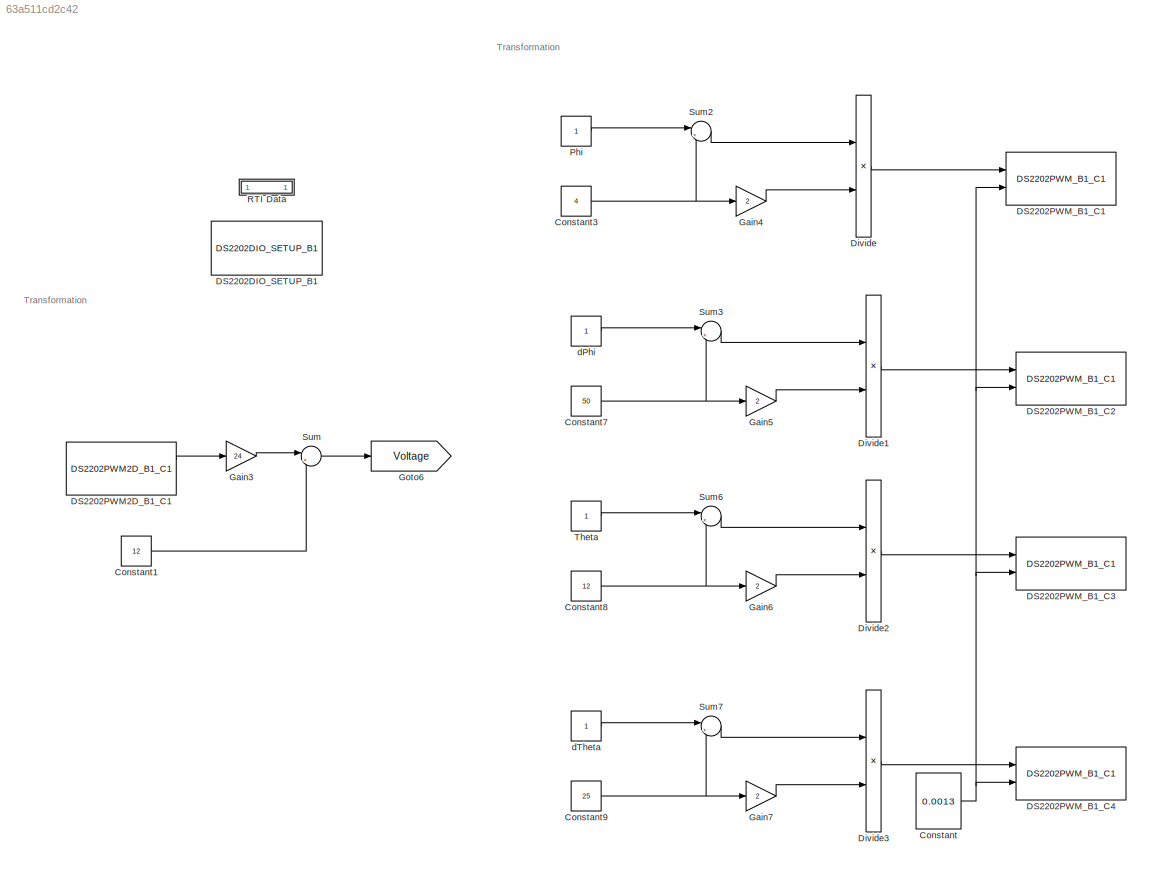
MODEL slx_63a511cd2c42
KIND model
CONFIG AbsTol = auto
CONFIG FixedStep = 0.0001
CONFIG MaxStep = auto
CONFIG MinStep = auto
CONFIG PostLoadFcn = , if any(exist('dsrtsu_mdlpostloadfcn', 'file') == [2, 3, 6]), try dsrtsu_mdlpostloadfcn('Execute', bdroot); catch fprintf('Error in PostLoadFcn (dsrtsu_mdlpostloadfcn) for model "%s":\n %s\n', bdroot, lasterr); end, end, \n
CONFIG RelTol = 1e-3
CONFIG SampleTimeConstraint = Unconstrained
CONFIG Solver = ode3
CONFIG SolverMode = SingleTasking
CONFIG SolverName = ode3
CONFIG StartTime = 0.0
CONFIG StopTime = Inf
BLOCK [Constant] Constant
  Value = 0.0013
BLOCK [Constant] Constant1
  Value = 12
BLOCK [Constant] Constant3
  Value = 4
BLOCK [Constant] Constant7
  Value = 50
BLOCK [Constant] Constant8
  Value = 12
BLOCK [Constant] Constant9
  Value = 25
BLOCK [Reference] DS2202DIO_SETUP_B1  REF=rti2202miolib/DS2202DIO_SETUP_B1
  DSProperties = struct('RTI',struct('Version',uint32(2),'BlockType',struct('isSLSource',uint8(0),'isSLSink',uint8(0),'isHWSource',uint8(0),'isHWSink',uint8(0),'isSetup',uint8(1),'isInline',uint8(1),'isNonInline',uint8(0),'isInterrupt',uint8(0),'isChannelwise',uint8(0)),'IOBoardType',{{'DS2202','MIO'}},'UnitType','SETUP','Identifier','SETUP','DialogType','ML','BlockSet','NONE','SlaveProcessor','NONE'))
  Ports = []
  RTIBlockInterface = struct('OutputPortsWidth',int32(0),'OutputPortsActive',0,'BlockDisplay',{{['Digital I/O\n SETUP'],'center'}},'IconTransparency','on','InitLevel',2,'DialogFcn','gui2202diosetup','BlockName',struct('Token',{{'DS2202DIO_SETUP_B'}},'BlockParam',{{'BoardNo'}}),'MaskDescription',['Configures the threshold level and the termination mode for all digital IO'])
  RTIBlockParaDefault = struct('BoardNo',1,'TermMode',0,'BitInThresholdLevelCh1',2.5,'BitInThresholdLevelCh2',2.5,'BitInThresholdLevelCh3',2.5,'BitInThresholdLevelCh4',2.5,'BitInThresholdLevelCh5',2.5,'BitInThresholdLevelCh6',2.5,'BitInThresholdLevelCh7',2.5,'BitInThresholdLevelCh8',2.5,'BitInThresholdLevelCh9',2.5,'BitInThresholdLevelCh10',2.5,'BitInThresholdLevelCh11',2.5,'BitInThresholdLevelCh12',2.5,'BitInThresholdLe...<+776ch>
  RTIBlockParameters = struct('BoardNo',{{1,'ON',[1 16]}},'TermMode',{{0,'OFF',[0 1]}},'BitInThresholdLevelCh1',{{'1.65','OFF',[1 23.8]}},'BitInThresholdLevelCh2',{{'1.65','OFF',[1 23.8]}},'BitInThresholdLevelCh3',{{'1.65','OFF',[1 23.8]}},'BitInThresholdLevelCh4',{{'1.65','OFF',[1 23.8]}},'BitInThresholdLevelCh5',{{'1.65','OFF',[1 23.8]}},'BitInThresholdLevelCh6',{{'1.65','OFF',[1 23.8]}},'BitInThresholdLevelCh7',{{'1....<+1493ch>
  RTISFcnParameters = struct('BoardNo','int32','TermMode','int32','BitInThresholdLevelCh1','double','BitInThresholdLevelCh2','double','BitInThresholdLevelCh3','double','BitInThresholdLevelCh4','double','BitInThresholdLevelCh5','double','BitInThresholdLevelCh6','double','BitInThresholdLevelCh7','double','BitInThresholdLevelCh8','double','BitInThresholdLevelCh9','double','BitInThresholdLevelCh10','double','BitInThreshold...<+754ch>
  Reserved1 = []
  Reserved2 = []
  Reserved3 = []
  Reserved4 = []
  SourceBlock = rti2202miolib/DS2202DIO_SETUP_B1
  SourceType = RTI
BLOCK [Reference] DS2202PWM2D_B1_C1  REF=rti2202miolib/DS2202PWM2D_B1_C1
  DSProperties = struct('RTI',struct('Version',uint32(1),'BlockType',struct('isSLSource',uint8(1),'isSLSink',uint8(0),'isHWSource',uint8(1),'isHWSink',uint8(0),'isSetup',uint8(0),'isInline',uint8(1),'isNonInline',uint8(0),'isInterrupt',uint8(0),'isChannelwise',uint8(1)),'IOBoardType',{{'DS2202','MIO'}},'UnitType','PWM','Identifier','PWM2D','DialogType','ML','BlockSet','NONE','SlaveProcessor','NONE'))
  Ports = [0, 2]
  RTIBlockInterface = struct('OutputPortsWidth',int32([1 1]),'OutputPortsActive',[1 1],'OutputPortsName',{{['Duty Cycle'],'Period'}},'IconTransparency','on','InitLevel',2,'DialogFcn','gui2202pwm2d','BlockName',struct('Token',{{'DS2202PWM2D_B','_C'}},'BlockParam',{{'BoardNo','ChannelNo'}}),'MaskDescription',['Provides read access to the pulse width of square-wave-type signals.'])
  RTIBlockParaDefault = struct('BoardNo',1,'ChannelNo',1,'UpdateMode',1,'PeriodRange',7,'TLCFileName','rti2202pwm2d')
  RTIBlockParameters = struct('BoardNo',{{1,'ON',[1 16]}},'ChannelNo',{{1,'ON',[1 24]}},'UpdateMode',{{1,'ON',[1 2]}},'PeriodRange',{{7,'OFF',[1 16]}},'TLCFileName',{{'rti2202pwm2d','OFF',[]}})
  RTISFcnParameters = struct('BoardNo','int32','ChannelNo','int32','UpdateMode','int32','PeriodRange','int32','TLCFileName','char')
  Reserved1 = []
  Reserved2 = []
  Reserved3 = []
  Reserved4 = []
  SourceBlock = rti2202miolib/DS2202PWM2D_B1_C1
  SourceType = RTI
BLOCK [Reference] DS2202PWM_B1_C1  REF=rti2202miolib/DS2202PWM_B1_C1
  DSProperties = struct('RTI',struct('Version',uint32(1),'BlockType',struct('isSLSource',uint8(0),'isSLSink',uint8(1),'isHWSource',uint8(0),'isHWSink',uint8(1),'isSetup',uint8(0),'isInline',uint8(1),'isNonInline',uint8(0),'isInterrupt',uint8(0),'isChannelwise',uint8(1)),'IOBoardType',{{'DS2202','MIO'}},'UnitType','PWM','Identifier','PWM','DialogType','ML','BlockSet','NONE','SlaveProcessor','NONE'))  <repeated x4 — deduplicated; at blocks: DS2202PWM_B1_C1, DS2202PWM_B1_C2, DS2202PWM_B1_C3, DS2202PWM_B1_C4>
  Ports = [2]
  RTIBlockInterface = struct('InputPortsWidth',int32([1 1]),'InputPortsActive',[1 1],'InputPortsName',{{['Duty Cycle'],'Period'}},'IconTransparency','on','InitLevel',2,'DialogFcn','gui2202pwm','BlockName',struct('Token',{{'DS2202PWM_B','_C'}},'BlockParam',{{'BoardNo','ChannelNo'}}),'MaskDescription',['Generation of a square-wave-type signal for a given period and duty cycle.'])  <repeated x4 — deduplicated; at blocks: DS2202PWM_B1_C1, DS2202PWM_B1_C2, DS2202PWM_B1_C3, DS2202PWM_B1_C4>
  RTIBlockParaDefault = struct('BoardNo',1,'ChannelNo',1,'UpdateMode',1,'PeriodRange',7,'DutyCycleInitValue',0,'PeriodInitValue',5e-05,'DutyCyclePeriodTermMode',0,'DutyCycleTermValue',0,'PeriodTermValue',5e-05,'TLCFileName','rti2202pwm')  <repeated x4 — deduplicated; at blocks: DS2202PWM_B1_C1, DS2202PWM_B1_C2, DS2202PWM_B1_C3, DS2202PWM_B1_C4>
  RTIBlockParameters = struct('BoardNo',{{1,'ON',[1 16]}},'ChannelNo',{{1,'ON',[1 9]}},'UpdateMode',{{1,'ON',[1 2]}},'PeriodRange',{{4,'OFF',[1 16]}},'DutyCycleInitValue',{{'0','OFF',[0 1]}},'PeriodInitValue',{{'5e-05','OFF',[]}},'DutyCyclePeriodTermMode',{{0,'OFF',[0 1]}},'DutyCycleTermValue',{{'0','OFF',[0 1]}},'PeriodTermValue',{{'5e-05','OFF',[]}},'TLCFileName',{{'rti2202pwm','OFF',[]}})
  RTISFcnParameters = struct('BoardNo','int32','ChannelNo','int32','UpdateMode','int32','PeriodRange','int32','DutyCycleInitValue','double','PeriodInitValue','double','DutyCyclePeriodTermMode','int32','DutyCycleTermValue','double','PeriodTermValue','double','TLCFileName','char')  <repeated x4 — deduplicated; at blocks: DS2202PWM_B1_C1, DS2202PWM_B1_C2, DS2202PWM_B1_C3, DS2202PWM_B1_C4>
  Reserved1 = []
  Reserved2 = []
  Reserved3 = []
  Reserved4 = []
  SourceBlock = rti2202miolib/DS2202PWM_B1_C1
  SourceType = RTI
BLOCK [Reference] DS2202PWM_B1_C2  REF=rti2202miolib/DS2202PWM_B1_C1
  Ports = [2]
  RTIBlockParameters = struct('BoardNo',{{1,'ON',[1 16]}},'ChannelNo',{{2,'ON',[1 9]}},'UpdateMode',{{1,'ON',[1 2]}},'PeriodRange',{{4,'OFF',[1 16]}},'DutyCycleInitValue',{{'0','OFF',[0 1]}},'PeriodInitValue',{{'5e-05','OFF',[]}},'DutyCyclePeriodTermMode',{{0,'OFF',[0 1]}},'DutyCycleTermValue',{{'0','OFF',[0 1]}},'PeriodTermValue',{{'5e-05','OFF',[]}},'TLCFileName',{{'rti2202pwm','OFF',[]}})
  Reserved1 = []
  Reserved2 = []
  Reserved3 = []
  Reserved4 = []
  SourceBlock = rti2202miolib/DS2202PWM_B1_C1
  SourceType = RTI
BLOCK [Reference] DS2202PWM_B1_C3  REF=rti2202miolib/DS2202PWM_B1_C1
  Ports = [2]
  RTIBlockParameters = struct('BoardNo',{{1,'ON',[1 16]}},'ChannelNo',{{3,'ON',[1 9]}},'UpdateMode',{{1,'ON',[1 2]}},'PeriodRange',{{4,'OFF',[1 16]}},'DutyCycleInitValue',{{'0','OFF',[0 1]}},'PeriodInitValue',{{'5e-05','OFF',[]}},'DutyCyclePeriodTermMode',{{0,'OFF',[0 1]}},'DutyCycleTermValue',{{'0','OFF',[0 1]}},'PeriodTermValue',{{'5e-05','OFF',[]}},'TLCFileName',{{'rti2202pwm','OFF',[]}})
  Reserved1 = []
  Reserved2 = []
  Reserved3 = []
  Reserved4 = []
  SourceBlock = rti2202miolib/DS2202PWM_B1_C1
  SourceType = RTI
BLOCK [Reference] DS2202PWM_B1_C4  REF=rti2202miolib/DS2202PWM_B1_C1
  Ports = [2]
  RTIBlockParameters = struct('BoardNo',{{1,'ON',[1 16]}},'ChannelNo',{{4,'ON',[1 9]}},'UpdateMode',{{1,'ON',[1 2]}},'PeriodRange',{{4,'OFF',[1 16]}},'DutyCycleInitValue',{{'0','OFF',[0 1]}},'PeriodInitValue',{{'5e-05','OFF',[]}},'DutyCyclePeriodTermMode',{{0,'OFF',[0 1]}},'DutyCycleTermValue',{{'0','OFF',[0 1]}},'PeriodTermValue',{{'5e-05','OFF',[]}},'TLCFileName',{{'rti2202pwm','OFF',[]}})
  Reserved1 = []
  Reserved2 = []
  Reserved3 = []
  Reserved4 = []
  SourceBlock = rti2202miolib/DS2202PWM_B1_C1
  SourceType = RTI
BLOCK [Product] Divide
  InputSameDT = off
  Inputs = */
  OutDataTypeStr = Inherit: Inherit via internal rule
  Ports = [2, 1]
  RndMeth = Floor
  SaturateOnIntegerOverflow = off
BLOCK [Product] Divide1
  InputSameDT = off
  Inputs = */
  OutDataTypeStr = Inherit: Inherit via internal rule
  Ports = [2, 1]
  RndMeth = Floor
  SaturateOnIntegerOverflow = off
BLOCK [Product] Divide2
  InputSameDT = off
  Inputs = */
  OutDataTypeStr = Inherit: Inherit via internal rule
  Ports = [2, 1]
  RndMeth = Floor
  SaturateOnIntegerOverflow = off
BLOCK [Product] Divide3
  InputSameDT = off
  Inputs = */
  OutDataTypeStr = Inherit: Inherit via internal rule
  Ports = [2, 1]
  RndMeth = Floor
  SaturateOnIntegerOverflow = off
BLOCK [Gain] Gain3
  Gain = 24
  OutDataTypeStr = Inherit: Inherit via internal rule
  ParamDataTypeStr = Inherit: Inherit via internal rule
  SaturateOnIntegerOverflow = off
BLOCK [Gain] Gain4
  Gain = 2
  OutDataTypeStr = Inherit: Inherit via internal rule
  ParamDataTypeStr = Inherit: Inherit via internal rule
  SaturateOnIntegerOverflow = off
BLOCK [Gain] Gain5
  Gain = 2
  OutDataTypeStr = Inherit: Inherit via internal rule
  ParamDataTypeStr = Inherit: Inherit via internal rule
  SaturateOnIntegerOverflow = off
BLOCK [Gain] Gain6
  Gain = 2
  OutDataTypeStr = Inherit: Inherit via internal rule
  ParamDataTypeStr = Inherit: Inherit via internal rule
  SaturateOnIntegerOverflow = off
BLOCK [Gain] Gain7
  Gain = 2
  OutDataTypeStr = Inherit: Inherit via internal rule
  ParamDataTypeStr = Inherit: Inherit via internal rule
  SaturateOnIntegerOverflow = off
BLOCK [Goto] Goto6
  GotoTag = Voltage
BLOCK [Constant] Phi
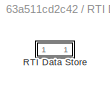
BLOCK [SubSystem] RTI Data
  CopyFcn = if exist('rtidc'), try,  rtidc('DataHostBlockClbCopy', gcbh); catch, disp(['Warning: ''CopyFcn'' for RTI Data block failed: ' lasterr]); end, end,
  DeleteFcn = if exist('rtidc'), try,  rtidc('DataHostBlockClbDelete', gcbh); catch, disp(['Warning: ''DeleteFcn'' for RTI Data block failed: ' lasterr]); end, end,
  LoadFcn = if exist('rtidc'), try,  rtidc('DataHostBlockClbLoad', gcbh); catch, disp(['Warning: ''LoadFcn'' for RTI Data block failed: ' lasterr]); end, end,
  ModelCloseFcn = if exist('rtidc'), try,  rtidc('DataHostBlockClbModelClose', gcbh); catch, disp(['Warning: ''ModelCloseFcn'' for RTI Data block failed: ' lasterr]); end, end,
  NameChangeFcn = if exist('rtidc'), try,  rtidc('DataHostBlockClbNameChange', gcbh); catch, disp(['Warning: ''NameChangeFcn'' for RTI Data block failed: ' lasterr]); end, end,
  Ports = []
  PostSaveFcn = if exist('rtidc'), try,  rtidc('DataHostBlockClbPostSave', gcbh); catch, disp(['Warning: ''PostSaveFcn'' for RTI Data block failed: ' lasterr]); end, end,
  PreSaveFcn = if exist('rtidc'), try,  rtidc('DataHostBlockClbPreSave', gcbh); catch, disp(['Warning: ''PreSaveFcn'' for RTI Data block failed: ' lasterr]); end, end,
  RequestExecContextInheritance = off
  Tag = struct('RTIDataServer',struct('RTIDataServerVs','2','RTIModelDescription','struct(''main'',''pwm_teste'',''sub'','''',''isMp'',0)'))
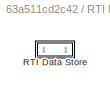
BLOCK [SubSystem] RTI Data/RTI Data Store
  Ports = []
  RequestExecContextInheritance = off
  Tag = struct('private',struct('version',struct('dsVer',uint32(2),'dsVerCreation',uint32(2),'RTI',struct('ver','7.3','type','RTI1006')),'access',struct('type','Model','isPerm',1,'created',['02-Oct-2018 16:40:55'],'modified',['26-Oct-2018 21:59:42'],'location','')),'public',struct('main',struct('data',[]),'sub',struct('name',{{'pwm_teste'}},'data',{{struct('TH',struct('thTaskInfo',struct('taskType',{'TIME...<+890ch>
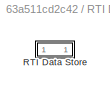
BLOCK [SubSystem] RTI Data/RTI Data Store/RTI Data Store
  Ports = []
  RequestExecContextInheritance = off
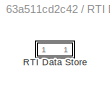
BLOCK [SubSystem] RTI Data/RTI Data Store/RTI Data Store/RTI Data Store
  Ports = []
  RequestExecContextInheritance = off
BLOCK [SubSystem] RTI Data/RTI Data Store/RTI Data Store/RTI Data Store/RTI Data Store
  Ports = []
  RequestExecContextInheritance = off
BLOCK [Sum] Sum
  IconShape = round
  InputSameDT = off
  Inputs = |+-
  OutDataTypeStr = Inherit: Inherit via internal rule
  Ports = [2, 1]
  SaturateOnIntegerOverflow = off
BLOCK [Sum] Sum2
  IconShape = round
  InputSameDT = off
  Inputs = |++
  OutDataTypeStr = Inherit: Inherit via internal rule
  Ports = [2, 1]
  SaturateOnIntegerOverflow = off
BLOCK [Sum] Sum3
  IconShape = round
  InputSameDT = off
  Inputs = |++
  OutDataTypeStr = Inherit: Inherit via internal rule
  Ports = [2, 1]
  SaturateOnIntegerOverflow = off
BLOCK [Sum] Sum6
  IconShape = round
  InputSameDT = off
  Inputs = |++
  OutDataTypeStr = Inherit: Inherit via internal rule
  Ports = [2, 1]
  SaturateOnIntegerOverflow = off
BLOCK [Sum] Sum7
  IconShape = round
  InputSameDT = off
  Inputs = |++
  OutDataTypeStr = Inherit: Inherit via internal rule
  Ports = [2, 1]
  SaturateOnIntegerOverflow = off
BLOCK [Constant] Theta
BLOCK [Constant] dPhi
BLOCK [Constant] dTheta
ANNOTATION (root): Transformation
LINE Constant1:1 -> Sum:2
NET Constant3:1 -> Gain4:1, Sum2:2
NET Constant7:1 -> Gain5:1, Sum3:2
NET Constant8:1 -> Gain6:1, Sum6:2
NET Constant9:1 -> Gain7:1, Sum7:2
NET Constant:1 -> DS2202PWM_B1_C1:2, DS2202PWM_B1_C2:2, DS2202PWM_B1_C3:2, DS2202PWM_B1_C4:2
LINE DS2202PWM2D_B1_C1:1 -> Gain3:1
LINE Divide1:1 -> DS2202PWM_B1_C2:1
LINE Divide2:1 -> DS2202PWM_B1_C3:1
LINE Divide3:1 -> DS2202PWM_B1_C4:1
LINE Divide:1 -> DS2202PWM_B1_C1:1
LINE Gain3:1 -> Sum:1
LINE Gain4:1 -> Divide:2
LINE Gain5:1 -> Divide1:2
LINE Gain6:1 -> Divide2:2
LINE Gain7:1 -> Divide3:2
LINE Phi:1 -> Sum2:1
LINE Sum2:1 -> Divide:1
LINE Sum3:1 -> Divide1:1
LINE Sum6:1 -> Divide2:1
LINE Sum7:1 -> Divide3:1
LINE Sum:1 -> Goto6:1
LINE Theta:1 -> Sum6:1
LINE dPhi:1 -> Sum3:1
LINE dTheta:1 -> Sum7:1
note: NET lines group one-source signal fan-out (src -> all destinations, sorted); 1:1 wires keep LINE
